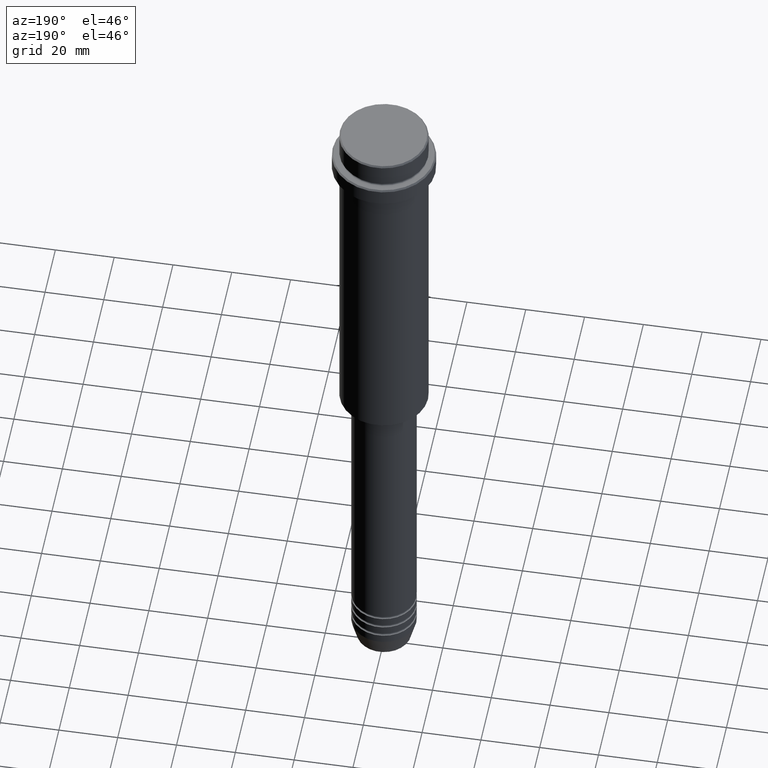
[diagram: clean part render]
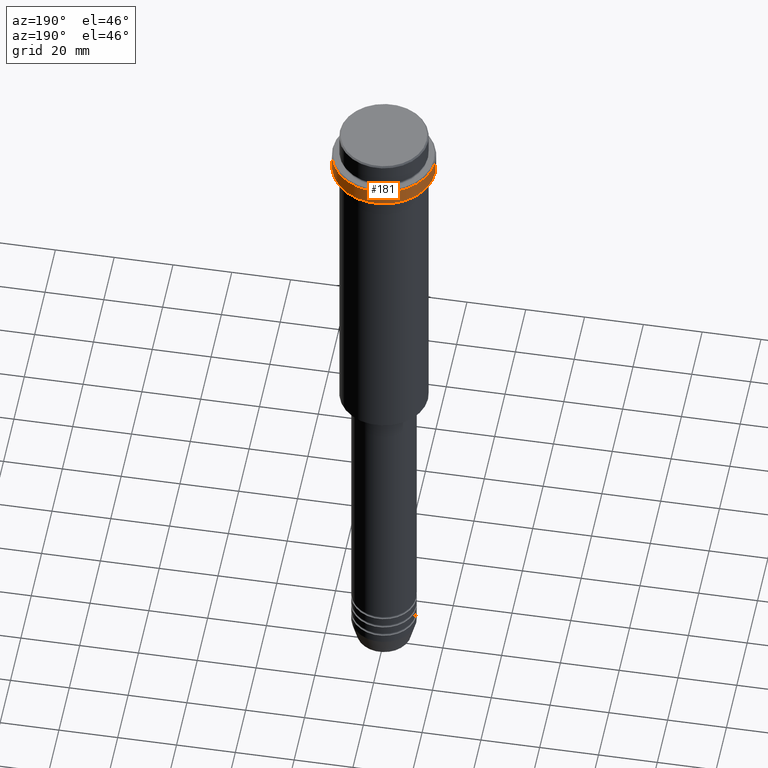
[diagram: same view with one face highlighted and labeled with its STEP entity id]
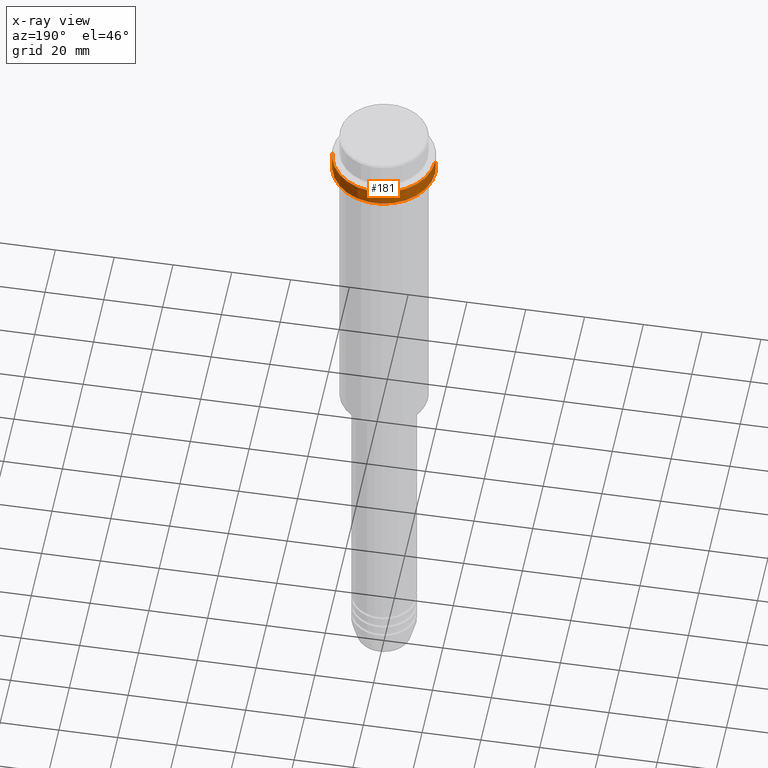
[diagram: x-ray of the same camera — body ghosted, the highlighted face saturated]
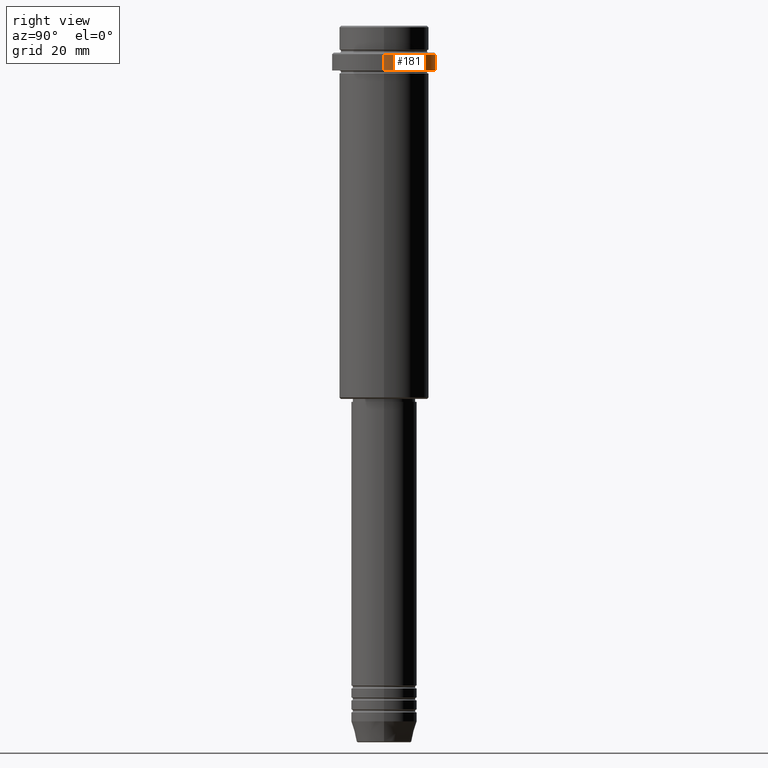
[diagram: same view with one face highlighted and labeled with its STEP entity id]
A machine part, auxiliary view. The second image highlights one B-rep face of the part: STEP entity #181.
The next image is the same camera in x-ray: the body ghosted, the highlighted face saturated — about 0% of this face is hidden behind the body in this view.
A second angle (right view) of the same face is appended — the face is thin or edge-on in the first view.
In plain terms, the highlighted cylindrical surface (partial cylindrical patch) has radius 17.5 mm, axis along (-0, -0, 1).
Its self-contained STEP definition (entity closure, byte-faithful):
#11 = CARTESIAN_POINT ( 'NONE',  ( -17.50000000000000000, 2.143131898507868248E-15, 0.000000000000000000 ) ) ;
#23 = VERTEX_POINT ( 'NONE', #215 ) ;
#67 = CARTESIAN_POINT ( 'NONE',  ( 0.000000000000000000, 0.000000000000000000, -9.499999999999971578 ) ) ;
#77 = ORIENTED_EDGE ( 'NONE', *, *, #1315, .T. ) ;
#91 = CARTESIAN_POINT ( 'NONE',  ( -17.50000000000000000, 2.143131898507868248E-15, -9.499999999999971578 ) ) ;
#128 = VECTOR ( 'NONE', #733, 1000.000000000000000 ) ;
#181 = ADVANCED_FACE ( 'NONE', ( #793 ), #268, .T. ) ;
#215 = CARTESIAN_POINT ( 'NONE',  ( -17.50000000000000000, 2.143131898507868248E-15, -15.00000000000000000 ) ) ;
#226 = VERTEX_POINT ( 'NONE', #585 ) ;
#235 = CIRCLE ( 'NONE', #1278, 17.50000000000000000 ) ;
#268 = CYLINDRICAL_SURFACE ( 'NONE', #708, 17.50000000000000000 ) ;
#273 = DIRECTION ( 'NONE',  ( 0.000000000000000000, 0.000000000000000000, -1.000000000000000000 ) ) ;
#307 = EDGE_LOOP ( 'NONE', ( #1288, #77, #1017, #1318 ) ) ;
#342 = VERTEX_POINT ( 'NONE', #1050 ) ;
#381 = EDGE_CURVE ( 'NONE', #1343, #226, #235, .T. ) ;
#505 = LINE ( 'NONE', #1381, #128 ) ;
#556 = DIRECTION ( 'NONE',  ( 1.000000000000000000, 0.000000000000000000, 0.000000000000000000 ) ) ;
#576 = DIRECTION ( 'NONE',  ( -0.000000000000000000, -0.000000000000000000, 1.000000000000000000 ) ) ;
#585 = CARTESIAN_POINT ( 'NONE',  ( 17.50000000000000000, 0.000000000000000000, -9.499999999999971578 ) ) ;
#603 = AXIS2_PLACEMENT_3D ( 'NONE', #1351, #676, #556 ) ;
#676 = DIRECTION ( 'NONE',  ( -0.000000000000000000, -0.000000000000000000, 1.000000000000000000 ) ) ;
#708 = AXIS2_PLACEMENT_3D ( 'NONE', #907, #576, #1245 ) ;
#733 = DIRECTION ( 'NONE',  ( -0.000000000000000000, -0.000000000000000000, 1.000000000000000000 ) ) ;
#748 = DIRECTION ( 'NONE',  ( -0.000000000000000000, -0.000000000000000000, 1.000000000000000000 ) ) ;
#793 = FACE_OUTER_BOUND ( 'NONE', #307, .T. ) ;
#806 = VECTOR ( 'NONE', #748, 1000.000000000000000 ) ;
#851 = CIRCLE ( 'NONE', #603, 17.50000000000000000 ) ;
#907 = CARTESIAN_POINT ( 'NONE',  ( 0.000000000000000000, 0.000000000000000000, 0.000000000000000000 ) ) ;
#934 = DIRECTION ( 'NONE',  ( 1.000000000000000000, 0.000000000000000000, 0.000000000000000000 ) ) ;
#1017 = ORIENTED_EDGE ( 'NONE', *, *, #381, .T. ) ;
#1043 = EDGE_CURVE ( 'NONE', #342, #23, #851, .T. ) ;
#1050 = CARTESIAN_POINT ( 'NONE',  ( 17.50000000000000000, 0.000000000000000000, -15.00000000000000000 ) ) ;
#1167 = EDGE_CURVE ( 'NONE', #342, #226, #505, .T. ) ;
#1245 = DIRECTION ( 'NONE',  ( 1.000000000000000000, 0.000000000000000000, 0.000000000000000000 ) ) ;
#1278 = AXIS2_PLACEMENT_3D ( 'NONE', #67, #273, #934 ) ;
#1288 = ORIENTED_EDGE ( 'NONE', *, *, #1043, .T. ) ;
#1314 = LINE ( 'NONE', #11, #806 ) ;
#1315 = EDGE_CURVE ( 'NONE', #23, #1343, #1314, .T. ) ;
#1318 = ORIENTED_EDGE ( 'NONE', *, *, #1167, .F. ) ;
#1343 = VERTEX_POINT ( 'NONE', #91 ) ;
#1351 = CARTESIAN_POINT ( 'NONE',  ( 0.000000000000000000, 0.000000000000000000, -15.00000000000000000 ) ) ;
#1381 = CARTESIAN_POINT ( 'NONE',  ( 17.50000000000000000, 0.000000000000000000, 0.000000000000000000 ) ) ;